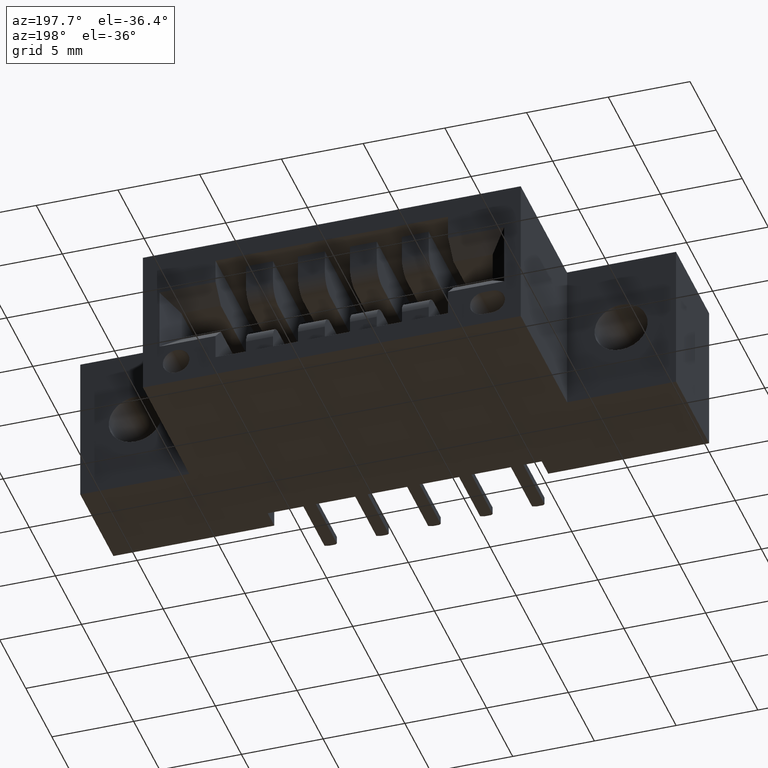
[diagram: clean part render]
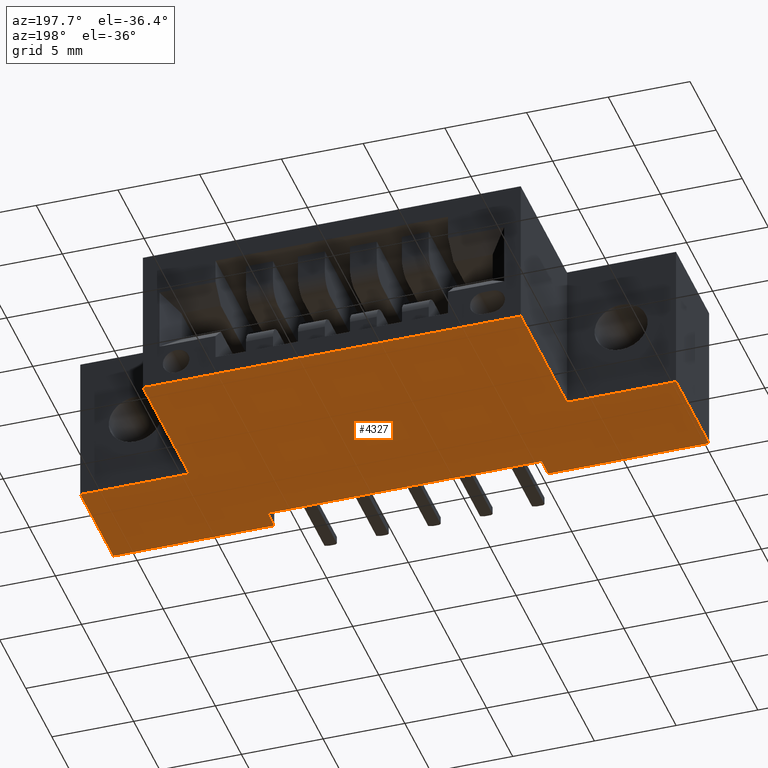
[diagram: same view with one face highlighted and labeled with its STEP entity id]
A machine part, auxiliary view. The second image highlights one B-rep face of the part: STEP entity #4327.
In plain terms, the highlighted planar face has unit normal (-0, 0, 1).
Its self-contained STEP definition (entity closure, byte-faithful):
#129 = VECTOR ( 'NONE', #2230, 39.37007874015748143 ) ;
#152 = VECTOR ( 'NONE', #4899, 39.37007874015748143 ) ;
#311 = LINE ( 'NONE', #7929, #129 ) ;
#387 = PLANE ( 'NONE',  #2154 ) ;
#449 = CARTESIAN_POINT ( 'NONE',  ( 1.047500000000000320, 0.0000000000000000000, -0.3700000000000001066 ) ) ;
#662 = VECTOR ( 'NONE', #3954, 39.37007874015748143 ) ;
#683 = DIRECTION ( 'NONE',  ( 1.000000000000000000, 0.0000000000000000000, 9.518634124265722614E-17 ) ) ;
#725 = VERTEX_POINT ( 'NONE', #2237 ) ;
#814 = CARTESIAN_POINT ( 'NONE',  ( 0.0000000000000000000, 0.2500000000000000000, -0.3700000000000001621 ) ) ;
#855 = DIRECTION ( 'NONE',  ( -1.000000000000000000, -0.0000000000000000000, -0.0000000000000000000 ) ) ;
#884 = CARTESIAN_POINT ( 'NONE',  ( 0.0000000000000000000, 0.0000000000000000000, -0.3700000000000001621 ) ) ;
#953 = VECTOR ( 'NONE', #6695, 39.37007874015748143 ) ;
#988 = DIRECTION ( 'NONE',  ( -0.0000000000000000000, -1.000000000000000000, -0.0000000000000000000 ) ) ;
#1409 = EDGE_CURVE ( 'NONE', #725, #1431, #6553, .T. ) ;
#1431 = VERTEX_POINT ( 'NONE', #3781 ) ;
#1435 = LINE ( 'NONE', #5994, #662 ) ;
#1474 = ORIENTED_EDGE ( 'NONE', *, *, #5973, .T. ) ;
#1530 = VERTEX_POINT ( 'NONE', #7927 ) ;
#1537 = ORIENTED_EDGE ( 'NONE', *, *, #6753, .F. ) ;
#1613 = ORIENTED_EDGE ( 'NONE', *, *, #6478, .T. ) ;
#1619 = DIRECTION ( 'NONE',  ( -1.000000000000000000, -0.0000000000000000000, -9.518634124265722614E-17 ) ) ;
#1994 = VECTOR ( 'NONE', #2895, 39.37007874015748143 ) ;
#2081 = CARTESIAN_POINT ( 'NONE',  ( 1.435000000000000497, 0.2500000000000000000, -0.3699999999999999956 ) ) ;
#2095 = ORIENTED_EDGE ( 'NONE', *, *, #2894, .F. ) ;
#2100 = EDGE_CURVE ( 'NONE', #725, #3703, #7520, .T. ) ;
#2147 = LINE ( 'NONE', #814, #5885 ) ;
#2154 = AXIS2_PLACEMENT_3D ( 'NONE', #7592, #4488, #683 ) ;
#2166 = VERTEX_POINT ( 'NONE', #7428 ) ;
#2193 = CARTESIAN_POINT ( 'NONE',  ( 1.435000000000000497, 0.0000000000000000000, -0.3699999999999999956 ) ) ;
#2230 = DIRECTION ( 'NONE',  ( -0.0000000000000000000, -1.000000000000000000, -0.0000000000000000000 ) ) ;
#2237 = CARTESIAN_POINT ( 'NONE',  ( 1.435000000000000497, 0.2500000000000001110, -0.3699999999999999956 ) ) ;
#2247 = CARTESIAN_POINT ( 'NONE',  ( 0.0000000000000000000, 0.0000000000000000000, -0.3700000000000001621 ) ) ;
#2327 = DIRECTION ( 'NONE',  ( -0.0000000000000000000, 1.000000000000000000, -0.0000000000000000000 ) ) ;
#2387 = VECTOR ( 'NONE', #2327, 39.37007874015748143 ) ;
#2409 = LINE ( 'NONE', #7486, #2387 ) ;
#2430 = VERTEX_POINT ( 'NONE', #4517 ) ;
#2520 = DIRECTION ( 'NONE',  ( -1.000000000000000000, -0.0000000000000000000, -9.518634124265722614E-17 ) ) ;
#2840 = EDGE_CURVE ( 'NONE', #5267, #2166, #311, .T. ) ;
#2894 = EDGE_CURVE ( 'NONE', #3895, #4631, #4245, .T. ) ;
#2895 = DIRECTION ( 'NONE',  ( -0.0000000000000000000, -1.000000000000000000, -0.0000000000000000000 ) ) ;
#2954 = EDGE_CURVE ( 'NONE', #1431, #7312, #2409, .T. ) ;
#3030 = CARTESIAN_POINT ( 'NONE',  ( 0.2625000000000000111, 0.2500000000000000000, -0.3700000000000001621 ) ) ;
#3096 = VECTOR ( 'NONE', #988, 39.37007874015748143 ) ;
#3152 = LINE ( 'NONE', #3870, #6119 ) ;
#3209 = ORIENTED_EDGE ( 'NONE', *, *, #6954, .F. ) ;
#3427 = CARTESIAN_POINT ( 'NONE',  ( 0.0000000000000000000, 0.2500000000000000000, -0.3700000000000001621 ) ) ;
#3701 = CARTESIAN_POINT ( 'NONE',  ( 0.0000000000000000000, 0.5999999999999999778, -0.3700000000000001621 ) ) ;
#3703 = VERTEX_POINT ( 'NONE', #2193 ) ;
#3781 = CARTESIAN_POINT ( 'NONE',  ( 1.172500000000000764, 0.2500000000000000000, -0.3699999999999999400 ) ) ;
#3870 = CARTESIAN_POINT ( 'NONE',  ( 0.0000000000000000000, 0.0000000000000000000, -0.3700000000000001621 ) ) ;
#3895 = VERTEX_POINT ( 'NONE', #3427 ) ;
#3912 = VERTEX_POINT ( 'NONE', #449 ) ;
#3954 = DIRECTION ( 'NONE',  ( 1.000000000000000000, 0.0000000000000000000, 2.069581813382016469E-16 ) ) ;
#4137 = VECTOR ( 'NONE', #6126, 39.37007874015748143 ) ;
#4152 = CARTESIAN_POINT ( 'NONE',  ( 1.172500000000000764, 0.5999999999999999778, -0.3699999999999999400 ) ) ;
#4180 = CARTESIAN_POINT ( 'NONE',  ( 1.435000000000000497, 0.5999999999999999778, -0.3699999999999999956 ) ) ;
#4245 = LINE ( 'NONE', #3701, #4137 ) ;
#4327 = ADVANCED_FACE ( 'NONE', ( #6118 ), #387, .F. ) ;
#4488 = DIRECTION ( 'NONE',  ( -9.518634124265722614E-17, 0.0000000000000000000, 1.000000000000000000 ) ) ;
#4517 = CARTESIAN_POINT ( 'NONE',  ( 0.2625000000000000111, 0.5999999999999999778, -0.3700000000000001621 ) ) ;
#4554 = ORIENTED_EDGE ( 'NONE', *, *, #7706, .T. ) ;
#4631 = VERTEX_POINT ( 'NONE', #884 ) ;
#4739 = CARTESIAN_POINT ( 'NONE',  ( 1.047500000000000320, 0.05000000000000000278, -0.3699999999999999956 ) ) ;
#4778 = LINE ( 'NONE', #7304, #953 ) ;
#4800 = EDGE_LOOP ( 'NONE', ( #5154, #6632, #6137, #6001, #1613, #3209, #1537, #7996, #4554, #2095, #7029, #1474 ) ) ;
#4862 = VERTEX_POINT ( 'NONE', #5857 ) ;
#4899 = DIRECTION ( 'NONE',  ( -1.000000000000000000, 0.0000000000000000000, 2.601759993965967928E-16 ) ) ;
#5054 = VECTOR ( 'NONE', #8104, 39.37007874015748143 ) ;
#5154 = ORIENTED_EDGE ( 'NONE', *, *, #8166, .F. ) ;
#5215 = CARTESIAN_POINT ( 'NONE',  ( 0.3874999999999999001, 0.05000000000000000278, -0.3700000000000001621 ) ) ;
#5267 = VERTEX_POINT ( 'NONE', #5215 ) ;
#5857 = CARTESIAN_POINT ( 'NONE',  ( 0.2625000000000000111, 0.2500000000000000000, -0.3700000000000001621 ) ) ;
#5885 = VECTOR ( 'NONE', #855, 39.37007874015748143 ) ;
#5973 = EDGE_CURVE ( 'NONE', #4862, #2430, #8035, .T. ) ;
#5994 = CARTESIAN_POINT ( 'NONE',  ( 0.3874999999999999001, 0.05000000000000000278, -0.3700000000000001621 ) ) ;
#6001 = ORIENTED_EDGE ( 'NONE', *, *, #2100, .T. ) ;
#6024 = VECTOR ( 'NONE', #1619, 39.37007874015748143 ) ;
#6118 = FACE_OUTER_BOUND ( 'NONE', #4800, .T. ) ;
#6119 = VECTOR ( 'NONE', #2520, 39.37007874015748143 ) ;
#6126 = DIRECTION ( 'NONE',  ( -0.0000000000000000000, -1.000000000000000000, -0.0000000000000000000 ) ) ;
#6137 = ORIENTED_EDGE ( 'NONE', *, *, #1409, .F. ) ;
#6478 = EDGE_CURVE ( 'NONE', #3703, #3912, #3152, .T. ) ;
#6553 = LINE ( 'NONE', #2081, #152 ) ;
#6628 = EDGE_CURVE ( 'NONE', #4862, #3895, #2147, .T. ) ;
#6632 = ORIENTED_EDGE ( 'NONE', *, *, #2954, .F. ) ;
#6695 = DIRECTION ( 'NONE',  ( -1.000000000000000000, -0.0000000000000000000, -9.518634124265722614E-17 ) ) ;
#6753 = EDGE_CURVE ( 'NONE', #5267, #1530, #1435, .T. ) ;
#6954 = EDGE_CURVE ( 'NONE', #1530, #3912, #8048, .T. ) ;
#7029 = ORIENTED_EDGE ( 'NONE', *, *, #6628, .F. ) ;
#7208 = LINE ( 'NONE', #2247, #6024 ) ;
#7304 = CARTESIAN_POINT ( 'NONE',  ( 0.0000000000000000000, 0.5999999999999999778, -0.3700000000000001621 ) ) ;
#7312 = VERTEX_POINT ( 'NONE', #4152 ) ;
#7428 = CARTESIAN_POINT ( 'NONE',  ( 0.3874999999999999001, 0.0000000000000000000, -0.3700000000000001621 ) ) ;
#7486 = CARTESIAN_POINT ( 'NONE',  ( 1.172500000000000764, 0.2500000000000000000, -0.3699999999999999400 ) ) ;
#7520 = LINE ( 'NONE', #4180, #3096 ) ;
#7592 = CARTESIAN_POINT ( 'NONE',  ( 0.0000000000000000000, 0.5999999999999999778, -0.3700000000000001621 ) ) ;
#7706 = EDGE_CURVE ( 'NONE', #2166, #4631, #7208, .T. ) ;
#7927 = CARTESIAN_POINT ( 'NONE',  ( 1.047500000000000320, 0.05000000000000000278, -0.3699999999999999956 ) ) ;
#7929 = CARTESIAN_POINT ( 'NONE',  ( 0.3874999999999999001, 0.05000000000000000278, -0.3700000000000001621 ) ) ;
#7996 = ORIENTED_EDGE ( 'NONE', *, *, #2840, .T. ) ;
#8035 = LINE ( 'NONE', #3030, #5054 ) ;
#8048 = LINE ( 'NONE', #4739, #1994 ) ;
#8104 = DIRECTION ( 'NONE',  ( -0.0000000000000000000, 1.000000000000000000, -0.0000000000000000000 ) ) ;
#8166 = EDGE_CURVE ( 'NONE', #7312, #2430, #4778, .T. ) ;